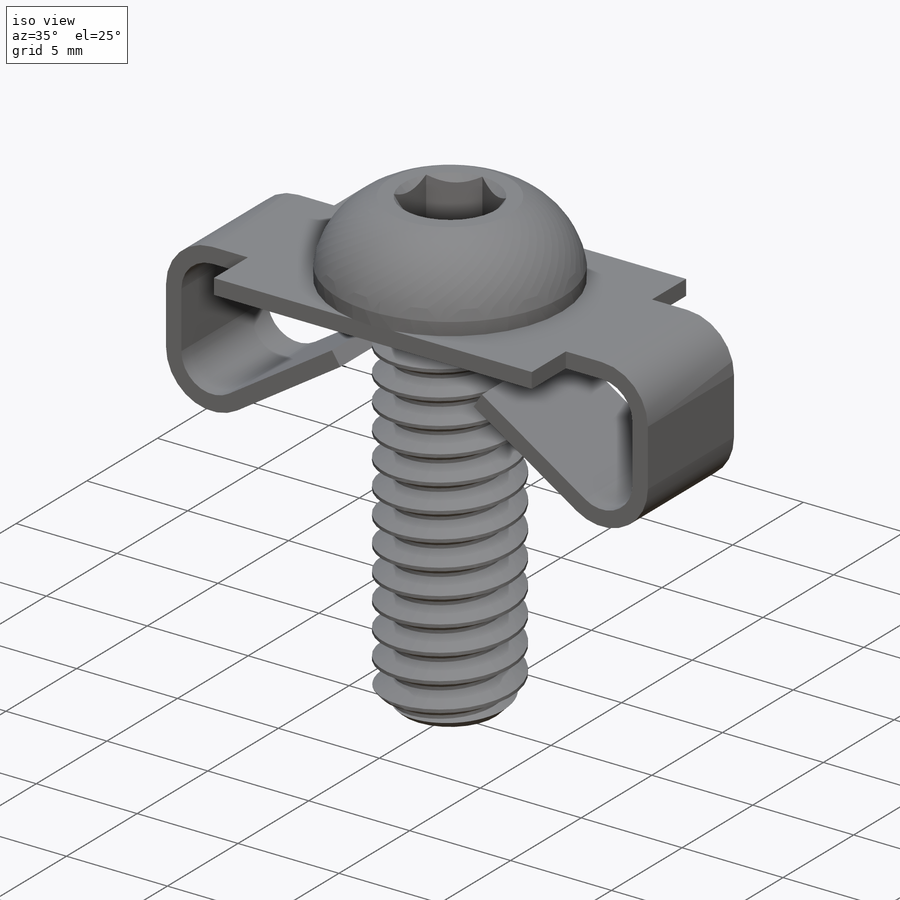
[diagram: iso view]
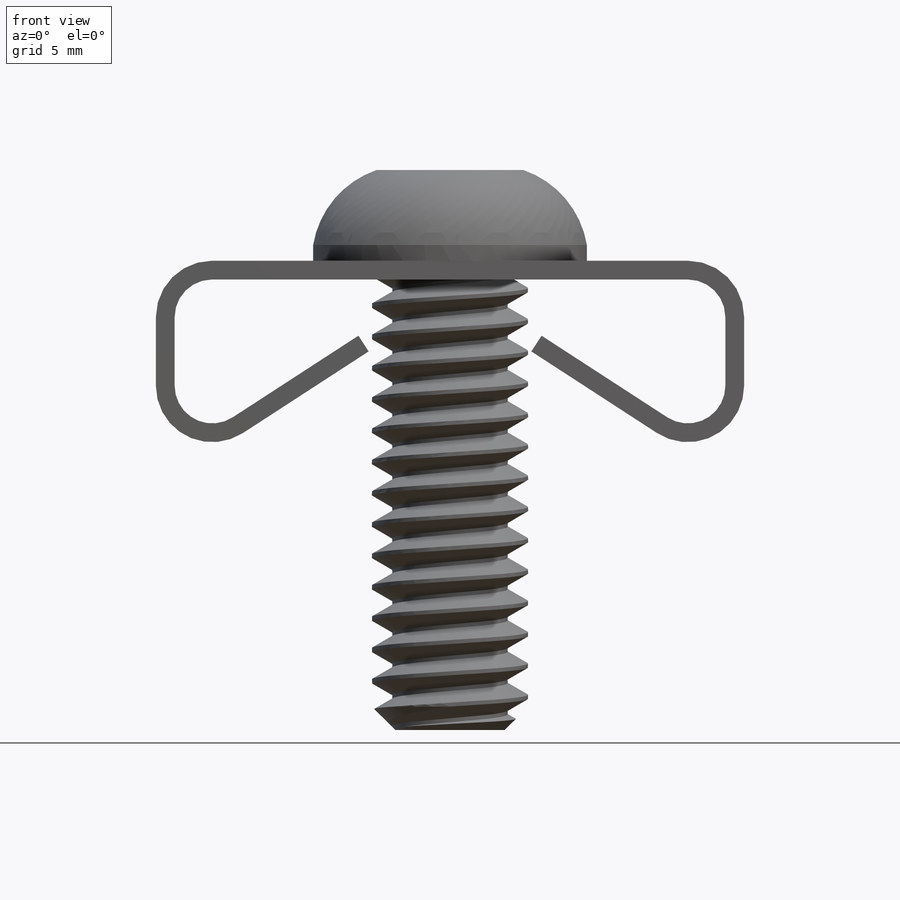
[diagram: front view]
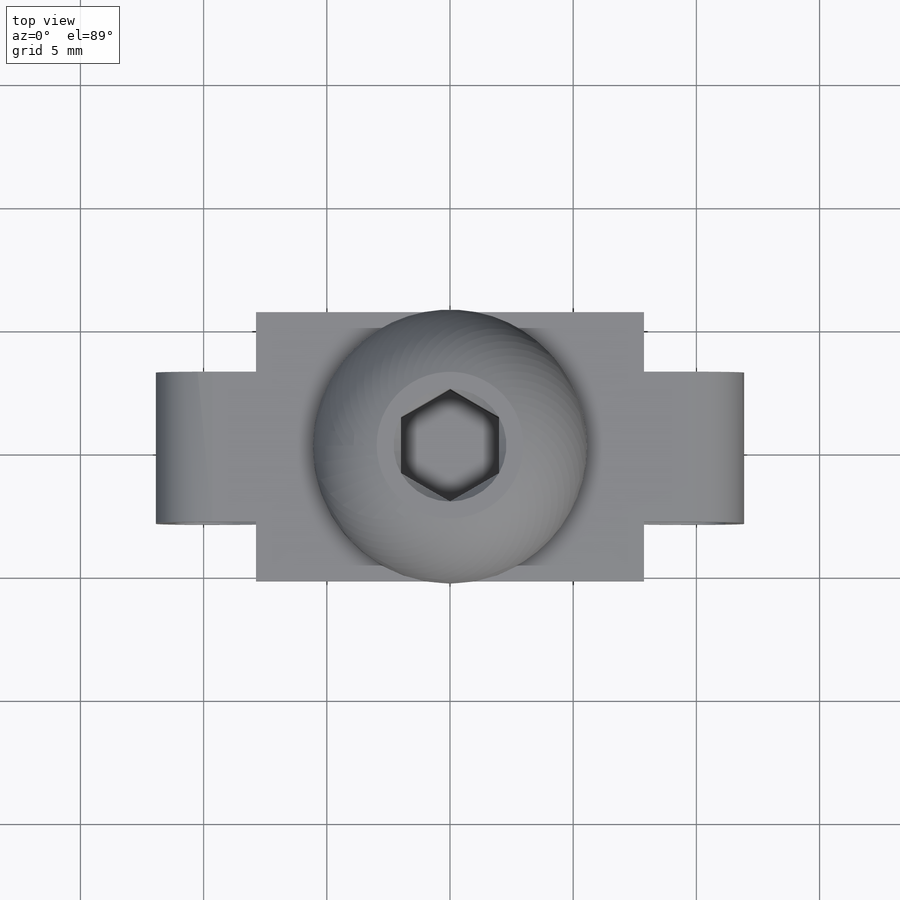
[diagram: top view]
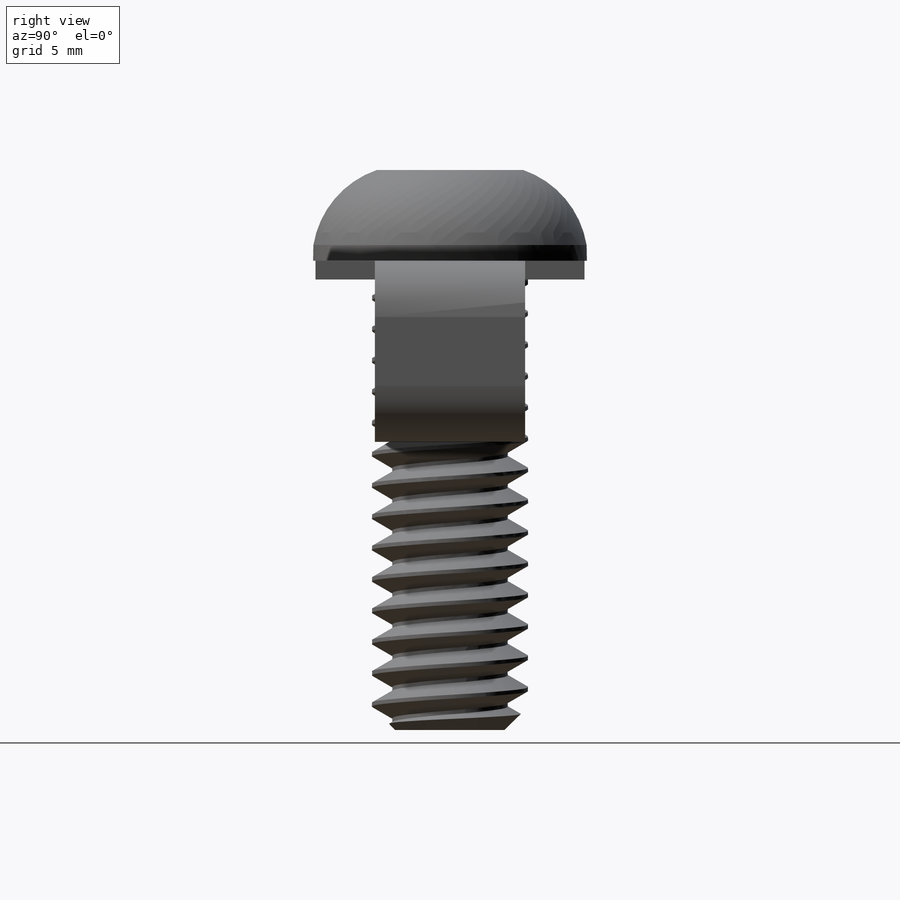
[diagram: right view]
SOLIDWORKS PART (.sldprt)
format: sldprt  version: not decoded by parser v0  size: 654,336 bytes
history: native  units: mm
features: sketch x10, extrude x3, cut_extrude x2, mirror x2, material x1, helix x1, chamfer x1, sweep x1, cut_revolve x1 (+14 scaffold rows collapsed)
feature tree (36):
  scaffold x14  (default folders/planes/origin — collapsed)
  material  "Alloy Steel"
  sketch  "Sketch1"  dims[D1=23.876mm D2=19.05mm D3=7.366mm D4=15.748mm]
  sketch  "Sketch2"  dims[D1=6.35mm]
  helix  "Helix/Spiral1"  Pitch=22.225mm
  sketch  "Sketch3"  dims[D1=0.0mm]
  extrude  "Extrude1"  [1 undecoded]
  chamfer  "Chamfer1"  Distance=0.9525mm Angle=45deg
  sketch  "Sketch4"  dims[c1.D1=~0.15875mm c1.D2=0.635mm c1.D3=~1.472037mm c2.D3=60.0deg]
  sweep  "Cut-Sweep1"
  sketch  "Sketch5"  dims[D1=2.286mm D3=3.683mm D2=0.762mm D4=0.127mm]
  extrude  "Extrude2"  Depth=10.922mm
  sketch  "Sketch6"
  cut_extrude  "Cut-Extrude2"  Depth=3.048mm
  mirror  "Mirror4"
  mirror  "Mirror5"
  sketch  "Sketch7"  dims[D2=11.1125mm D1=~3.96875mm]
  extrude  "Extrude4"  Depth=3.683mm
  sketch  "Sketch8"  dims[D1=~5.953125mm]
  sketch  "Sketch9"  dims[D1=0.635mm]
  cut_revolve  "Cut-Revolve1"  Angle=360deg
  sketch  "Sketch10"
  cut_extrude  "Cut-Extrude3"  [1 undecoded]
decode coverage: 14 of 21 modeling features carry decoded parameters
note: ~ marks probable driven/reference dimensions
note: 2 parameter values undecoded
note: suppression state not decoded; provenance and decode notes live in map.json
